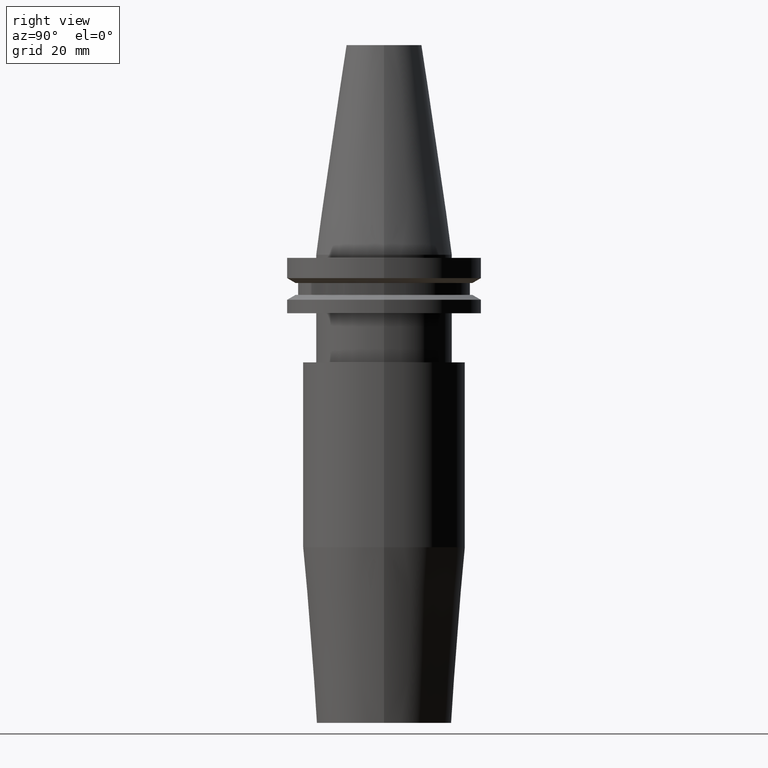
[diagram: clean part render]
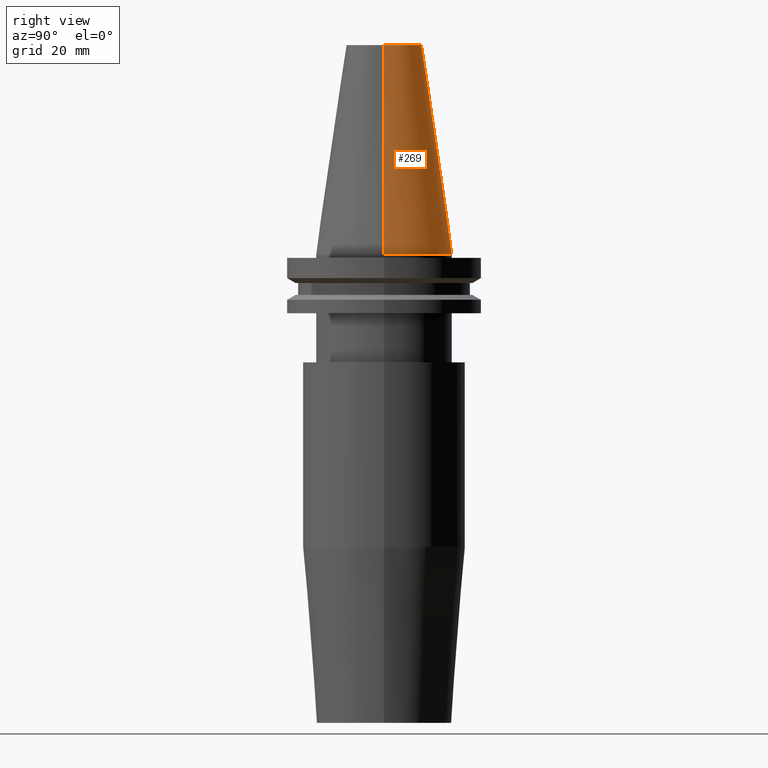
[diagram: same view with one face highlighted and labeled with its STEP entity id]
A machine part, right view. The second image highlights one B-rep face of the part: STEP entity #269.
In plain terms, the highlighted conical surface has half-angle 8.297 deg.
Its self-contained STEP definition (entity closure, byte-faithful):
#8 = CIRCLE ( 'NONE', #347, 22.22500000000000142 ) ;
#11 = CARTESIAN_POINT ( 'NONE',  ( -22.22500000000000142, 0.000000000000000000, 0.000000000000000000 ) ) ;
#21 = CIRCLE ( 'NONE', #333, 12.27178102086201150 ) ;
#55 = EDGE_LOOP ( 'NONE', ( #143, #808, #332, #430 ) ) ;
#66 = DIRECTION ( 'NONE',  ( 0.1443082272672999711, 1.767266086135276757E-17, -0.9895327864921755756 ) ) ;
#80 = EDGE_CURVE ( 'NONE', #438, #97, #239, .T. ) ;
#97 = VERTEX_POINT ( 'NONE', #399 ) ;
#132 = CARTESIAN_POINT ( 'NONE',  ( 0.000000000000000000, 0.000000000000000000, 0.000000000000000000 ) ) ;
#139 = DIRECTION ( 'NONE',  ( -0.1443082272672999711, 0.000000000000000000, -0.9895327864921755756 ) ) ;
#143 = ORIENTED_EDGE ( 'NONE', *, *, #371, .F. ) ;
#162 = EDGE_CURVE ( 'NONE', #320, #312, #396, .T. ) ;
#179 = AXIS2_PLACEMENT_3D ( 'NONE', #132, #728, #190 ) ;
#190 = DIRECTION ( 'NONE',  ( -1.000000000000000000, 0.000000000000000000, 0.000000000000000000 ) ) ;
#225 = CARTESIAN_POINT ( 'NONE',  ( 0.000000000000000000, 0.000000000000000000, 68.25000000000000000 ) ) ;
#234 = VECTOR ( 'NONE', #66, 999.9999999999998863 ) ;
#239 = LINE ( 'NONE', #589, #234 ) ;
#269 = ADVANCED_FACE ( 'NONE', ( #272 ), #373, .T. ) ;
#272 = FACE_OUTER_BOUND ( 'NONE', #55, .T. ) ;
#312 = VERTEX_POINT ( 'NONE', #11 ) ;
#320 = VERTEX_POINT ( 'NONE', #803 ) ;
#332 = ORIENTED_EDGE ( 'NONE', *, *, #418, .T. ) ;
#333 = AXIS2_PLACEMENT_3D ( 'NONE', #225, #544, #736 ) ;
#340 = DIRECTION ( 'NONE',  ( -0.000000000000000000, -0.000000000000000000, 1.000000000000000000 ) ) ;
#347 = AXIS2_PLACEMENT_3D ( 'NONE', #672, #340, #478 ) ;
#371 = EDGE_CURVE ( 'NONE', #438, #320, #21, .T. ) ;
#373 = CONICAL_SURFACE ( 'NONE', #179, 22.22500000000000142, 0.1448138465474119174 ) ;
#396 = LINE ( 'NONE', #525, #468 ) ;
#399 = CARTESIAN_POINT ( 'NONE',  ( 22.22500000000000142, 2.721777511104992849E-15, 0.000000000000000000 ) ) ;
#418 = EDGE_CURVE ( 'NONE', #97, #312, #8, .T. ) ;
#430 = ORIENTED_EDGE ( 'NONE', *, *, #162, .F. ) ;
#438 = VERTEX_POINT ( 'NONE', #820 ) ;
#468 = VECTOR ( 'NONE', #139, 999.9999999999998863 ) ;
#478 = DIRECTION ( 'NONE',  ( 1.000000000000000000, 0.000000000000000000, 0.000000000000000000 ) ) ;
#525 = CARTESIAN_POINT ( 'NONE',  ( -22.22500000000000142, 0.000000000000000000, 0.000000000000000000 ) ) ;
#544 = DIRECTION ( 'NONE',  ( -0.000000000000000000, -0.000000000000000000, 1.000000000000000000 ) ) ;
#589 = CARTESIAN_POINT ( 'NONE',  ( 22.22500000000000142, 2.721777511104992849E-15, 0.000000000000000000 ) ) ;
#672 = CARTESIAN_POINT ( 'NONE',  ( 0.000000000000000000, 0.000000000000000000, 0.000000000000000000 ) ) ;
#728 = DIRECTION ( 'NONE',  ( 0.000000000000000000, 0.000000000000000000, -1.000000000000000000 ) ) ;
#736 = DIRECTION ( 'NONE',  ( 1.000000000000000000, 0.000000000000000000, 0.000000000000000000 ) ) ;
#803 = CARTESIAN_POINT ( 'NONE',  ( -12.27178102086201150, 0.000000000000000000, 68.25000000000000000 ) ) ;
#808 = ORIENTED_EDGE ( 'NONE', *, *, #80, .T. ) ;
#820 = CARTESIAN_POINT ( 'NONE',  ( 12.27178102086201150, 2.112318622904291439E-15, 68.25000000000000000 ) ) ;